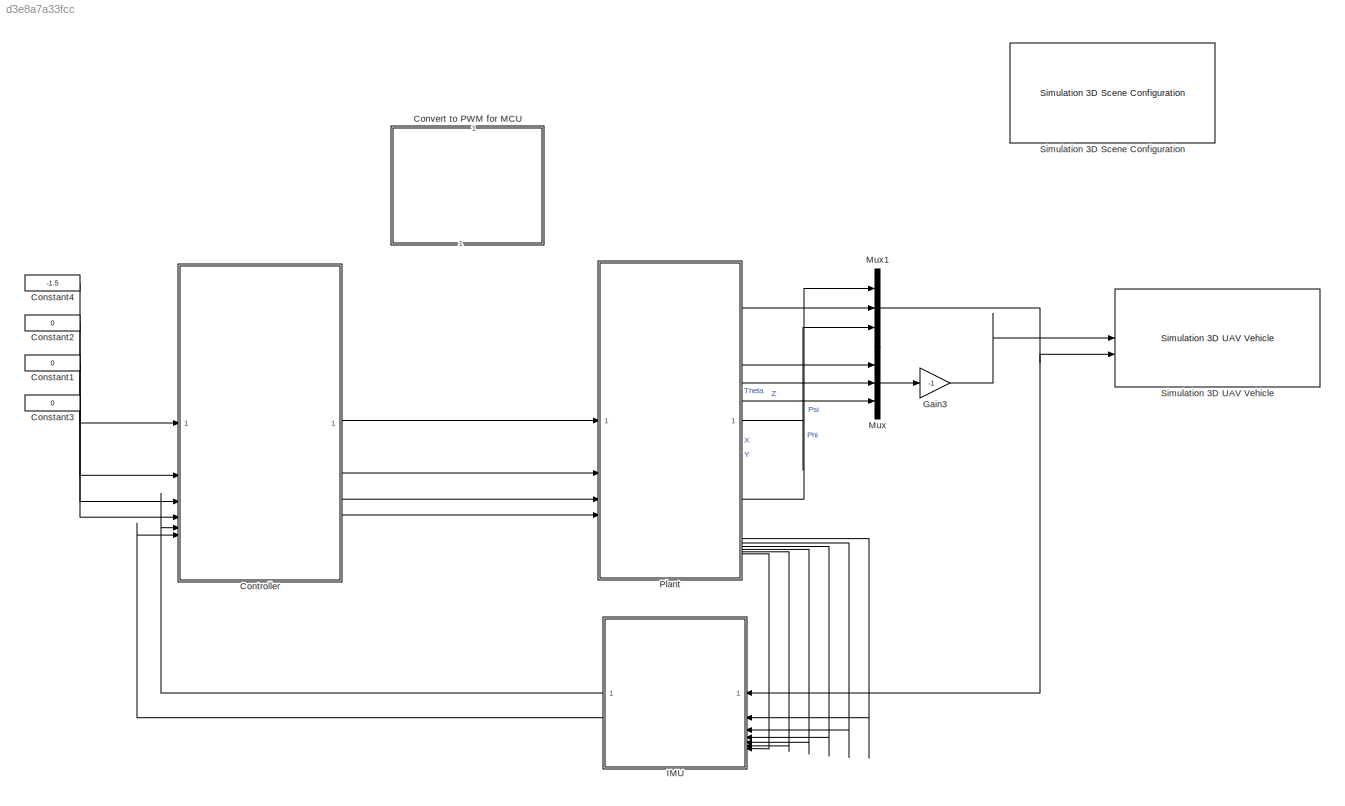
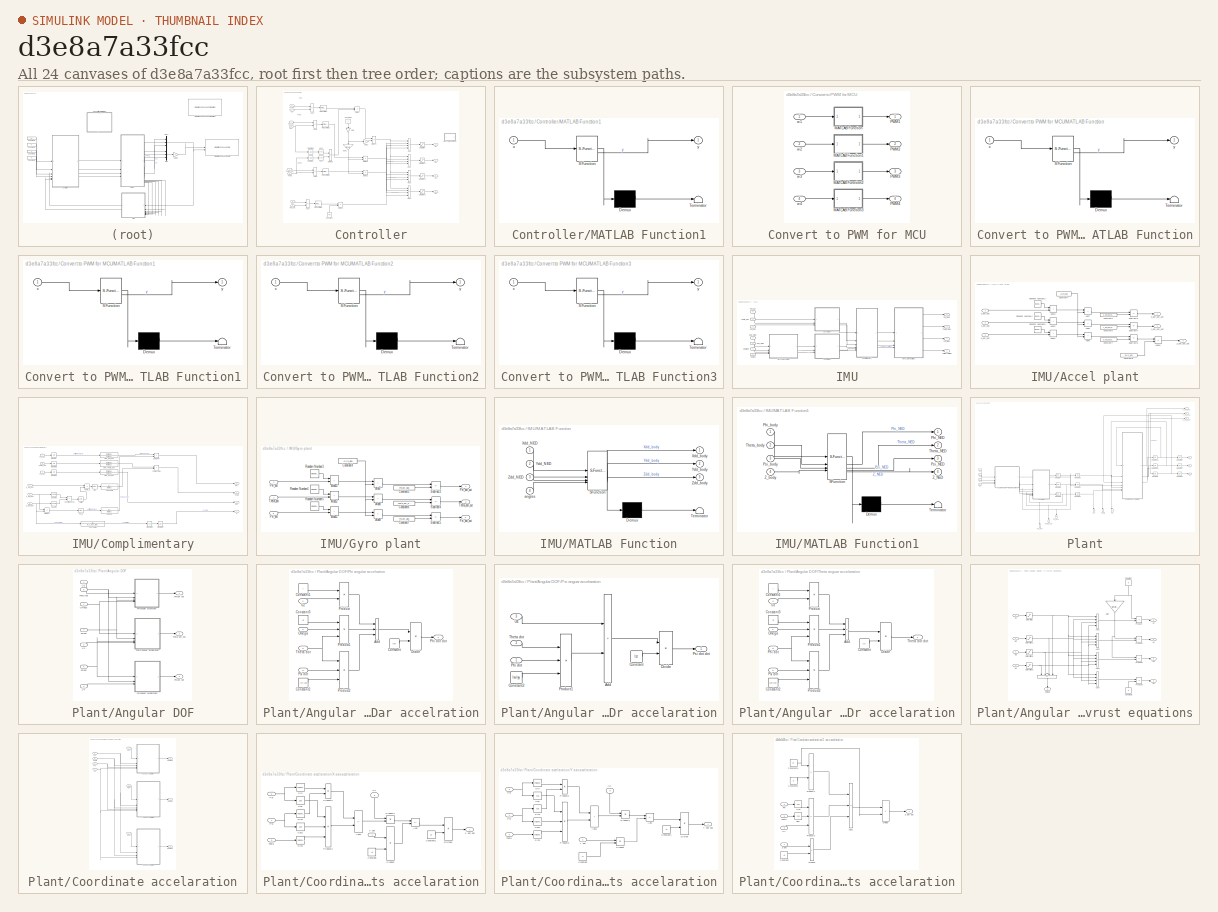
[diagram: thumbnail index - all 24 canvases of the model, root first then tree order]
MODEL slx_d3e8a7a33fcc
KIND model
CONFIG AbsTol = auto
CONFIG EnableMultiTasking = off
CONFIG FixedStep = auto
CONFIG InitFcn = m = 0.0489; % Mass of the drone (kg)\nd = 0.00116; % Torque constant of one motor (N*m / s^2)\nb = 4*1e-5; % Thrust constant of one motor (N / s^2)\nIxx = 48932*1e-9; % Drone inertia around the xx axis (Kg * m^2)\nIyy = 49929*1e-9; % Drone inertia around the yy axis (Kg * m^2)\nIzz = 99299*1e-9; % Drone inertia around the zz axis (Kg * m^2)\nl = 0.116 / 2; % Lenght from the motor to the mid point (m)\nJr...<+405ch>
CONFIG MaxStep = auto
CONFIG MinStep = auto
CONFIG RelTol = 1e-1
CONFIG SampleTimeConstraint = Unconstrained
CONFIG SolverName = VariableStepAuto
CONFIG StartTime = 0.0
CONFIG StopTime = 10
BLOCK [Constant] Constant1
  Value = 0
BLOCK [Constant] Constant2
  Value = 0
BLOCK [Constant] Constant3
  Value = 0
BLOCK [Constant] Constant4
  Value = -1.5
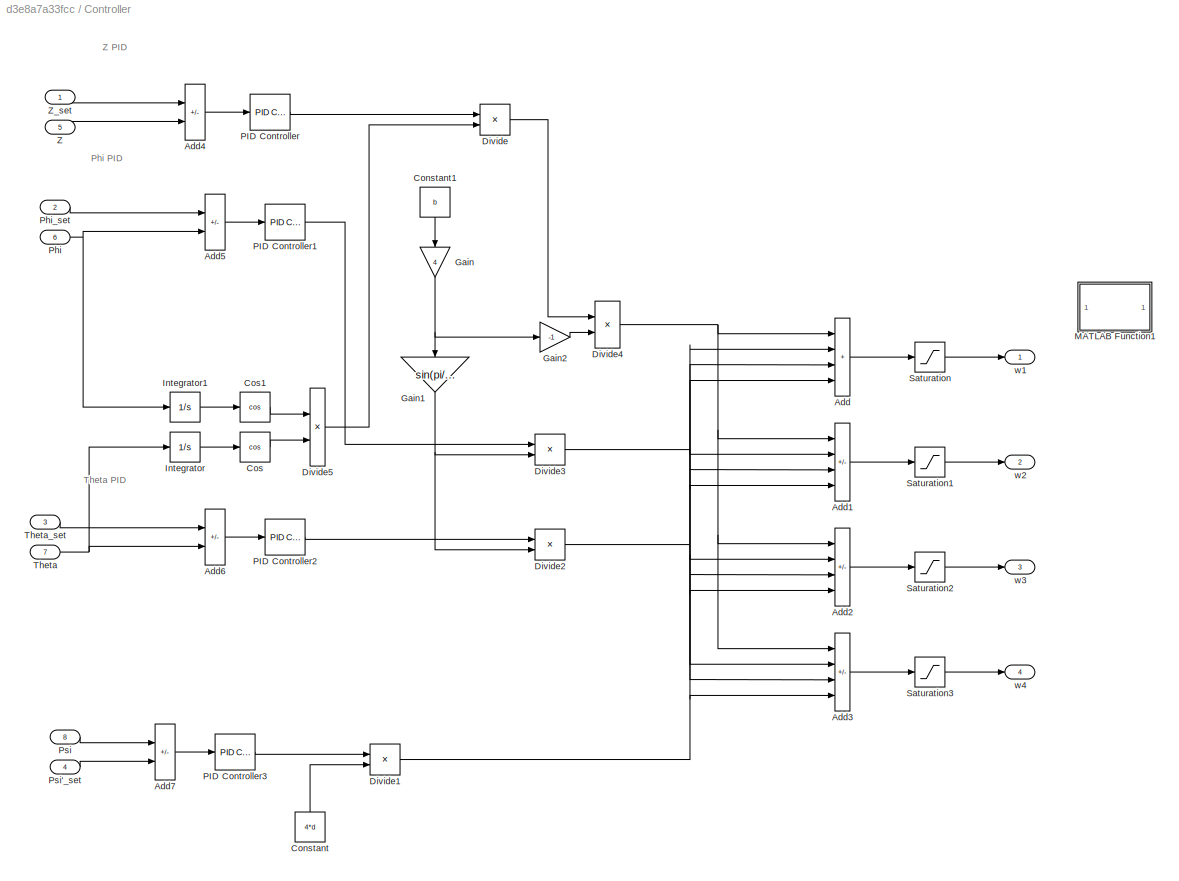
BLOCK [SubSystem] Controller
BLOCK [Sum] Controller/Add
  IconShape = rectangular
  Inputs = ++++
BLOCK [Sum] Controller/Add1
  IconShape = rectangular
  Inputs = +-+-
BLOCK [Sum] Controller/Add2
  IconShape = rectangular
  Inputs = +--+
BLOCK [Sum] Controller/Add3
  IconShape = rectangular
  Inputs = ++--
BLOCK [Sum] Controller/Add4
  IconShape = rectangular
  Inputs = +-
BLOCK [Sum] Controller/Add5
  IconShape = rectangular
  Inputs = +-
BLOCK [Sum] Controller/Add6
  IconShape = rectangular
  Inputs = +-
BLOCK [Sum] Controller/Add7
  IconShape = rectangular
  Inputs = +-
BLOCK [Constant] Controller/Constant
  NameLocation = right
  Value = 4*d
BLOCK [Constant] Controller/Constant1
  NameLocation = left
  Value = b
BLOCK [Trigonometry] Controller/Cos
  Operator = cos
BLOCK [Trigonometry] Controller/Cos1
  Operator = cos
BLOCK [Product] Controller/Divide
  Inputs = */
BLOCK [Product] Controller/Divide1
  Inputs = */
BLOCK [Product] Controller/Divide2
  Inputs = */
BLOCK [Product] Controller/Divide3
  Inputs = */
BLOCK [Product] Controller/Divide4
  Inputs = */
BLOCK [Product] Controller/Divide5
  Inputs = **
BLOCK [Gain] Controller/Gain
  Gain = 4
  NameLocation = left
BLOCK [Gain] Controller/Gain1
  Gain = sin(pi/4)*l
  NameLocation = left
BLOCK [Gain] Controller/Gain2
  Gain = -1
BLOCK [Integrator] Controller/Integrator
BLOCK [Integrator] Controller/Integrator1
BLOCK [SubSystem] Controller/MATLAB Function1
  ErrorFcn = Stateflow.Translate.translate
  LibrarySourceBlock = simulink/User-Defined\nFunctions/MATLAB Function
  PermitHierarchicalResolution = ExplicitOnly
  SFBlockType = MATLAB Function
  TreatAsAtomicUnit = on
BLOCK [Demux] Controller/MATLAB Function1/ Demux 
  Outputs = 1
BLOCK [S-Function] Controller/MATLAB Function1/ SFunction 
  EnableBusSupport = on
  FunctionName = sf_sfun
  PortCounts = [1 2]
  SFcnIsStateOwnerBlock = off
  SFunctionDeploymentMode = off
  Tag = Stateflow S-Function 6
BLOCK [Terminator] Controller/MATLAB Function1/ Terminator 
BLOCK [Inport] Controller/MATLAB Function1/u
BLOCK [Outport] Controller/MATLAB Function1/y
BLOCK [Reference] Controller/PID Controller  REF=slpidlib/PID Controller
  LibrarySourceBlock = simulink/Continuous/PID Controller
  SourceBlock = slpidlib/PID Controller
  SourceType = PID 1dof
BLOCK [Reference] Controller/PID Controller1  REF=slpidlib/PID Controller
  LibrarySourceBlock = simulink/Continuous/PID Controller
  SourceBlock = slpidlib/PID Controller
  SourceType = PID 1dof
BLOCK [Reference] Controller/PID Controller2  REF=slpidlib/PID Controller
  LibrarySourceBlock = simulink/Continuous/PID Controller
  SourceBlock = slpidlib/PID Controller
  SourceType = PID 1dof
BLOCK [Reference] Controller/PID Controller3  REF=slpidlib/PID Controller
  LibrarySourceBlock = simulink/Continuous/PID Controller
  SourceBlock = slpidlib/PID Controller
  SourceType = PID 1dof
BLOCK [Inport] Controller/Phi
  Port = 6
BLOCK [Inport] Controller/Phi_set
  Port = 2
BLOCK [Inport] Controller/Psi
  Port = 8
BLOCK [Inport] Controller/Psi'_set
  Port = 4
BLOCK [Saturate] Controller/Saturation
  LowerLimit = 0
  UpperLimit = 3500
BLOCK [Saturate] Controller/Saturation1
  LowerLimit = 0
  UpperLimit = 3500
BLOCK [Saturate] Controller/Saturation2
  LowerLimit = 0
  UpperLimit = 3500
BLOCK [Saturate] Controller/Saturation3
  LowerLimit = 0
  UpperLimit = 3500
BLOCK [Inport] Controller/Theta
  Port = 7
BLOCK [Inport] Controller/Theta_set
  Port = 3
BLOCK [Inport] Controller/Z
  Port = 5
BLOCK [Inport] Controller/Z_set
BLOCK [Outport] Controller/w1
BLOCK [Outport] Controller/w2
  Port = 2
BLOCK [Outport] Controller/w3
  Port = 3
BLOCK [Outport] Controller/w4
  Port = 4
BLOCK [SubSystem] Convert to PWM for MCU
  Commented = on
  NameLocation = right
BLOCK [SubSystem] Convert to PWM for MCU/MATLAB Function
  ErrorFcn = Stateflow.Translate.translate
  LibrarySourceBlock = simulink/User-Defined\nFunctions/MATLAB Function
  PermitHierarchicalResolution = ExplicitOnly
  SFBlockType = MATLAB Function
  TreatAsAtomicUnit = on
BLOCK [Demux] Convert to PWM for MCU/MATLAB Function/ Demux 
  Outputs = 1
BLOCK [S-Function] Convert to PWM for MCU/MATLAB Function/ SFunction 
  EnableBusSupport = on
  FunctionName = sf_sfun
  PortCounts = [1 2]
  SFcnIsStateOwnerBlock = off
  SFunctionDeploymentMode = off
  Tag = Stateflow S-Function 7
BLOCK [Terminator] Convert to PWM for MCU/MATLAB Function/ Terminator 
BLOCK [Inport] Convert to PWM for MCU/MATLAB Function/x
BLOCK [Outport] Convert to PWM for MCU/MATLAB Function/y
BLOCK [SubSystem] Convert to PWM for MCU/MATLAB Function1
  ErrorFcn = Stateflow.Translate.translate
  LibrarySourceBlock = simulink/User-Defined\nFunctions/MATLAB Function
  PermitHierarchicalResolution = ExplicitOnly
  SFBlockType = MATLAB Function
  TreatAsAtomicUnit = on
BLOCK [Demux] Convert to PWM for MCU/MATLAB Function1/ Demux 
  Outputs = 1
BLOCK [S-Function] Convert to PWM for MCU/MATLAB Function1/ SFunction 
  EnableBusSupport = on
  FunctionName = sf_sfun
  PortCounts = [1 2]
  SFcnIsStateOwnerBlock = off
  SFunctionDeploymentMode = off
  Tag = Stateflow S-Function 1
BLOCK [Terminator] Convert to PWM for MCU/MATLAB Function1/ Terminator 
BLOCK [Inport] Convert to PWM for MCU/MATLAB Function1/x
BLOCK [Outport] Convert to PWM for MCU/MATLAB Function1/y
BLOCK [SubSystem] Convert to PWM for MCU/MATLAB Function2
  ErrorFcn = Stateflow.Translate.translate
  LibrarySourceBlock = simulink/User-Defined\nFunctions/MATLAB Function
  PermitHierarchicalResolution = ExplicitOnly
  SFBlockType = MATLAB Function
  TreatAsAtomicUnit = on
BLOCK [Demux] Convert to PWM for MCU/MATLAB Function2/ Demux 
  Outputs = 1
BLOCK [S-Function] Convert to PWM for MCU/MATLAB Function2/ SFunction 
  EnableBusSupport = on
  FunctionName = sf_sfun
  PortCounts = [1 2]
  SFcnIsStateOwnerBlock = off
  SFunctionDeploymentMode = off
  Tag = Stateflow S-Function 2
BLOCK [Terminator] Convert to PWM for MCU/MATLAB Function2/ Terminator 
BLOCK [Inport] Convert to PWM for MCU/MATLAB Function2/x
BLOCK [Outport] Convert to PWM for MCU/MATLAB Function2/y
BLOCK [SubSystem] Convert to PWM for MCU/MATLAB Function3
  ErrorFcn = Stateflow.Translate.translate
  LibrarySourceBlock = simulink/User-Defined\nFunctions/MATLAB Function
  PermitHierarchicalResolution = ExplicitOnly
  SFBlockType = MATLAB Function
  TreatAsAtomicUnit = on
BLOCK [Demux] Convert to PWM for MCU/MATLAB Function3/ Demux 
  Outputs = 1
BLOCK [S-Function] Convert to PWM for MCU/MATLAB Function3/ SFunction 
  EnableBusSupport = on
  FunctionName = sf_sfun
  PortCounts = [1 2]
  SFcnIsStateOwnerBlock = off
  SFunctionDeploymentMode = off
  Tag = Stateflow S-Function 3
BLOCK [Terminator] Convert to PWM for MCU/MATLAB Function3/ Terminator 
BLOCK [Inport] Convert to PWM for MCU/MATLAB Function3/x
BLOCK [Outport] Convert to PWM for MCU/MATLAB Function3/y
BLOCK [Outport] Convert to PWM for MCU/PWM1
BLOCK [Outport] Convert to PWM for MCU/PWM2
  Port = 2
BLOCK [Outport] Convert to PWM for MCU/PWM3
  Port = 3
BLOCK [Outport] Convert to PWM for MCU/PWM4
  Port = 4
BLOCK [Inport] Convert to PWM for MCU/w1
BLOCK [Inport] Convert to PWM for MCU/w2
  Port = 2
BLOCK [Inport] Convert to PWM for MCU/w3
  Port = 3
BLOCK [Inport] Convert to PWM for MCU/w4
  Port = 4
BLOCK [Gain] Gain3
  Gain = -1
BLOCK [SubSystem] IMU
  NameLocation = top
BLOCK [SubSystem] IMU/Accel plant
BLOCK [Sum] IMU/Accel plant/Add10
  IconShape = rectangular
  Inputs = +-
BLOCK [Sum] IMU/Accel plant/Add11
  IconShape = rectangular
BLOCK [Sum] IMU/Accel plant/Add12
  IconShape = rectangular
BLOCK [Sum] IMU/Accel plant/Add13
  IconShape = rectangular
BLOCK [Sum] IMU/Accel plant/Add7
  IconShape = rectangular
BLOCK [Sum] IMU/Accel plant/Add8
  IconShape = rectangular
BLOCK [Sum] IMU/Accel plant/Add9
  IconShape = rectangular
BLOCK [Constant] IMU/Accel plant/Constant4
  Value = Accel_bias
BLOCK [Constant] IMU/Accel plant/Constant5
  Value = X_dot_dot_bias
BLOCK [Constant] IMU/Accel plant/Constant6
  Value = Y_dot_dot_bias
BLOCK [Constant] IMU/Accel plant/Constant7
  Value = Z_dot_dot_bias
BLOCK [Constant] IMU/Accel plant/Constant8
  Value = Gyro_bias
BLOCK [RandomNumber] IMU/Accel plant/Random Number3
  SampleTime = 0.001
  Seed = 1
  Variance = 0.0001
BLOCK [RandomNumber] IMU/Accel plant/Random Number4
  SampleTime = 0.001
  Seed = 1
  Variance = 0.0001
BLOCK [RandomNumber] IMU/Accel plant/Random Number5
  SampleTime = 0.001
  Seed = 1
  Variance = 0.0001
BLOCK [Sum] IMU/Accel plant/Subtract3
  IconShape = rectangular
  Inputs = +-
BLOCK [Sum] IMU/Accel plant/Subtract4
  IconShape = rectangular
  Inputs = +-
BLOCK [Sum] IMU/Accel plant/Subtract5
  IconShape = rectangular
  Inputs = +-
BLOCK [Inport] IMU/Accel plant/X_dot_dot
BLOCK [Outport] IMU/Accel plant/X_dot_dot_out
BLOCK [Inport] IMU/Accel plant/Y_dot_dot
  Port = 2
BLOCK [Outport] IMU/Accel plant/Y_dot_dot_out
  Port = 2
BLOCK [Inport] IMU/Accel plant/Z_dot_dot
  Port = 3
BLOCK [Outport] IMU/Accel plant/Z_dot_dot_out
  Port = 3
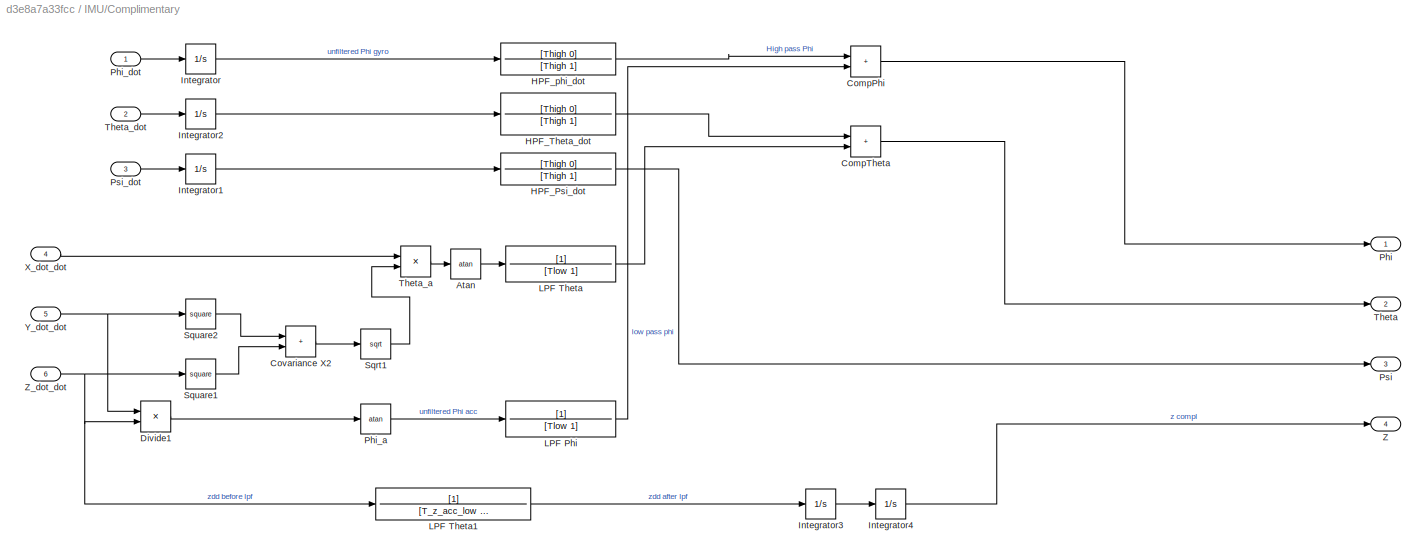
BLOCK [SubSystem] IMU/Complimentary
BLOCK [Trigonometry] IMU/Complimentary/Atan
  Operator = atan
BLOCK [Sum] IMU/Complimentary/CompPhi
  IconShape = rectangular
BLOCK [Sum] IMU/Complimentary/CompTheta
  IconShape = rectangular
BLOCK [Sum] IMU/Complimentary/Covariance X2
  IconShape = rectangular
BLOCK [Product] IMU/Complimentary/Divide1
  Inputs = */
BLOCK [TransferFcn] IMU/Complimentary/HPF_Psi_dot
  Denominator = [Thigh 1]
  Numerator = [Thigh 0]
BLOCK [TransferFcn] IMU/Complimentary/HPF_Theta_dot
  Denominator = [Thigh 1]
  Numerator = [Thigh 0]
BLOCK [TransferFcn] IMU/Complimentary/HPF_phi_dot
  Denominator = [Thigh 1]
  Numerator = [Thigh 0]
BLOCK [Integrator] IMU/Complimentary/Integrator
BLOCK [Integrator] IMU/Complimentary/Integrator1
BLOCK [Integrator] IMU/Complimentary/Integrator2
BLOCK [Integrator] IMU/Complimentary/Integrator3
BLOCK [Integrator] IMU/Complimentary/Integrator4
  LimitOutput = on
  UpperSaturationLimit = 0
BLOCK [TransferFcn] IMU/Complimentary/LPF Phi
  Denominator = [Tlow 1]
BLOCK [TransferFcn] IMU/Complimentary/LPF Theta
  Denominator = [Tlow 1]
BLOCK [TransferFcn] IMU/Complimentary/LPF Theta1
  Denominator = [T_z_acc_low 1]
BLOCK [Outport] IMU/Complimentary/Phi
BLOCK [Trigonometry] IMU/Complimentary/Phi_a
  Operator = atan
BLOCK [Inport] IMU/Complimentary/Phi_dot
BLOCK [Outport] IMU/Complimentary/Psi
  Port = 3
BLOCK [Inport] IMU/Complimentary/Psi_dot
  Port = 3
BLOCK [Sqrt] IMU/Complimentary/Sqrt1
BLOCK [Math] IMU/Complimentary/Square1
  Operator = square
BLOCK [Math] IMU/Complimentary/Square2
  Operator = square
BLOCK [Outport] IMU/Complimentary/Theta
  Port = 2
BLOCK [Product] IMU/Complimentary/Theta_a
  Inputs = */
BLOCK [Inport] IMU/Complimentary/Theta_dot
  Port = 2
BLOCK [Inport] IMU/Complimentary/X_dot_dot
  Port = 4
BLOCK [Inport] IMU/Complimentary/Y_dot_dot
  Port = 5
BLOCK [Outport] IMU/Complimentary/Z
  Port = 4
BLOCK [Inport] IMU/Complimentary/Z_dot_dot
  Port = 6
BLOCK [SubSystem] IMU/Gyro plant
BLOCK [Sum] IMU/Gyro plant/Add11
  IconShape = rectangular
BLOCK [Sum] IMU/Gyro plant/Add12
  IconShape = rectangular
BLOCK [Sum] IMU/Gyro plant/Add13
  IconShape = rectangular
BLOCK [Sum] IMU/Gyro plant/Add7
  IconShape = rectangular
BLOCK [Sum] IMU/Gyro plant/Add8
  IconShape = rectangular
BLOCK [Sum] IMU/Gyro plant/Add9
  IconShape = rectangular
BLOCK [Constant] IMU/Gyro plant/Constant4
  Value = Gyro_bias
BLOCK [Constant] IMU/Gyro plant/Constant5
  Value = Phi_dot_bias
BLOCK [Constant] IMU/Gyro plant/Constant6
  Value = Theta_dot_bias
BLOCK [Constant] IMU/Gyro plant/Constant7
  Value = Psi_dot_bias
BLOCK [Inport] IMU/Gyro plant/Phi_dot
BLOCK [Outport] IMU/Gyro plant/Phi_dot_out
BLOCK [Inport] IMU/Gyro plant/Psi_dot
  Port = 3
BLOCK [Outport] IMU/Gyro plant/Psi_dot_out
  Port = 3
BLOCK [RandomNumber] IMU/Gyro plant/Random Number3
  SampleTime = 0.001
  Seed = 1
  Variance = 0.0001
BLOCK [RandomNumber] IMU/Gyro plant/Random Number4
  SampleTime = 0.001
  Seed = 1
  Variance = 0.0001
BLOCK [RandomNumber] IMU/Gyro plant/Random Number5
  SampleTime = 0.001
  Seed = 1
  Variance = 0.0001
BLOCK [Sum] IMU/Gyro plant/Subtract3
  IconShape = rectangular
  Inputs = +-
BLOCK [Sum] IMU/Gyro plant/Subtract4
  IconShape = rectangular
  Inputs = +-
BLOCK [Sum] IMU/Gyro plant/Subtract5
  IconShape = rectangular
  Inputs = +-
BLOCK [Inport] IMU/Gyro plant/Theta_dot
  Port = 2
BLOCK [Outport] IMU/Gyro plant/Theta_dot_out
  Port = 2
BLOCK [SubSystem] IMU/MATLAB Function
  ErrorFcn = Stateflow.Translate.translate
  LibrarySourceBlock = simulink/User-Defined\nFunctions/MATLAB Function
  PermitHierarchicalResolution = ExplicitOnly
  SFBlockType = MATLAB Function
  TreatAsAtomicUnit = on
BLOCK [Demux] IMU/MATLAB Function/ Demux 
  Outputs = 1
BLOCK [S-Function] IMU/MATLAB Function/ SFunction 
  EnableBusSupport = on
  FunctionName = sf_sfun
  PortCounts = [4 4]
  SFcnIsStateOwnerBlock = off
  SFunctionDeploymentMode = off
  Tag = Stateflow S-Function 5
BLOCK [Terminator] IMU/MATLAB Function/ Terminator 
BLOCK [Inport] IMU/MATLAB Function/Xdd_NED
BLOCK [Outport] IMU/MATLAB Function/Xdd_body
BLOCK [Inport] IMU/MATLAB Function/Ydd_NED
  Port = 2
BLOCK [Outport] IMU/MATLAB Function/Ydd_body
  Port = 2
BLOCK [Inport] IMU/MATLAB Function/Zdd_NED
  Port = 3
BLOCK [Outport] IMU/MATLAB Function/Zdd_body
  Port = 3
BLOCK [Inport] IMU/MATLAB Function/angles
  Port = 4
BLOCK [SubSystem] IMU/MATLAB Function1
  ErrorFcn = Stateflow.Translate.translate
  LibrarySourceBlock = simulink/User-Defined\nFunctions/MATLAB Function
  PermitHierarchicalResolution = ExplicitOnly
  SFBlockType = MATLAB Function
  TreatAsAtomicUnit = on
BLOCK [Demux] IMU/MATLAB Function1/ Demux 
  Outputs = 1
BLOCK [S-Function] IMU/MATLAB Function1/ SFunction 
  EnableBusSupport = on
  FunctionName = sf_sfun
  PortCounts = [4 5]
  SFcnIsStateOwnerBlock = off
  SFunctionDeploymentMode = off
  Tag = Stateflow S-Function 4
BLOCK [Terminator] IMU/MATLAB Function1/ Terminator 
BLOCK [Outport] IMU/MATLAB Function1/Phi_NED
BLOCK [Inport] IMU/MATLAB Function1/Phi_body
BLOCK [Outport] IMU/MATLAB Function1/Psi_NED
  Port = 3
BLOCK [Inport] IMU/MATLAB Function1/Psi_body
  Port = 3
BLOCK [Outport] IMU/MATLAB Function1/Theta_NED
  Port = 2
BLOCK [Inport] IMU/MATLAB Function1/Theta_body
  Port = 2
BLOCK [Outport] IMU/MATLAB Function1/Z_NED
  Port = 4
BLOCK [Inport] IMU/MATLAB Function1/Z_body
  Port = 4
BLOCK [Outport] IMU/Phi_NED
  Port = 2
BLOCK [Inport] IMU/Phi_dot
  Port = 5
BLOCK [Outport] IMU/Psi_NED
  Port = 4
BLOCK [Inport] IMU/Psi_dot
  Port = 7
BLOCK [Outport] IMU/Theta_NED
  Port = 3
BLOCK [Inport] IMU/Theta_dot
  Port = 6
BLOCK [Inport] IMU/Xdd_NED
  Port = 2
BLOCK [Inport] IMU/Ydd_NED
  Port = 3
BLOCK [Outport] IMU/Z after rotation
BLOCK [Inport] IMU/Zdotdot
  Port = 4
BLOCK [Inport] IMU/angles
BLOCK [Mux] Mux
  DisplayOption = bar
  Inputs = 3
BLOCK [Mux] Mux1
  DisplayOption = bar
  Inputs = 3
BLOCK [SubSystem] Plant
BLOCK [SubSystem] Plant/Angular DOF
BLOCK [Inport] Plant/Angular DOF/Omega
  Port = 4
BLOCK [SubSystem] Plant/Angular DOF/Phi angular accelration
BLOCK [Sum] Plant/Angular DOF/Phi angular accelration/Add
  IconShape = rectangular
  Inputs = +++
BLOCK [Constant] Plant/Angular DOF/Phi angular accelration/Constant
  Value = Ixx
BLOCK [Constant] Plant/Angular DOF/Phi angular accelration/Constant1
  Value = l
BLOCK [Constant] Plant/Angular DOF/Phi angular accelration/Constant2
  Value = Iyy-Izz
BLOCK [Constant] Plant/Angular DOF/Phi angular accelration/Constant3
  Value = Jr
BLOCK [Product] Plant/Angular DOF/Phi angular accelration/Divide
  Inputs = */
BLOCK [Inport] Plant/Angular DOF/Phi angular accelration/Omega
  Port = 4
BLOCK [Outport] Plant/Angular DOF/Phi angular accelration/Phi dot dot
BLOCK [Product] Plant/Angular DOF/Phi angular accelration/Product
BLOCK [Product] Plant/Angular DOF/Phi angular accelration/Product1
  Inputs = 3
BLOCK [Product] Plant/Angular DOF/Phi angular accelration/Product2
  Inputs = 3
BLOCK [Inport] Plant/Angular DOF/Phi angular accelration/Psi dot
  Port = 3
BLOCK [Inport] Plant/Angular DOF/Phi angular accelration/Theta dot
  Port = 2
BLOCK [Inport] Plant/Angular DOF/Phi angular accelration/U2
BLOCK [Inport] Plant/Angular DOF/Phi dot
  Port = 5
BLOCK [Outport] Plant/Angular DOF/Phi dot dot
BLOCK [SubSystem] Plant/Angular DOF/Psi anguar accelaration
BLOCK [Sum] Plant/Angular DOF/Psi anguar accelaration/Add
  IconShape = rectangular
BLOCK [Constant] Plant/Angular DOF/Psi anguar accelaration/Constant
  Value = Izz
BLOCK [Constant] Plant/Angular DOF/Psi anguar accelaration/Constant2
  Value = Ixx-Iyy
BLOCK [Product] Plant/Angular DOF/Psi anguar accelaration/Divide
  Inputs = */
BLOCK [Inport] Plant/Angular DOF/Psi anguar accelaration/Phi dot
BLOCK [Product] Plant/Angular DOF/Psi anguar accelaration/Product1
  Inputs = 3
BLOCK [Outport] Plant/Angular DOF/Psi anguar accelaration/Psi dot dot
BLOCK [Inport] Plant/Angular DOF/Psi anguar accelaration/Theta dot
  Port = 2
BLOCK [Inport] Plant/Angular DOF/Psi anguar accelaration/U4
  Port = 3
BLOCK [Inport] Plant/Angular DOF/Psi dot
  Port = 7
BLOCK [Outport] Plant/Angular DOF/Psi dot dot
  Port = 3
BLOCK [SubSystem] Plant/Angular DOF/Theta anguar accelaration
BLOCK [Sum] Plant/Angular DOF/Theta anguar accelaration/Add
  IconShape = rectangular
  Inputs = +-+
BLOCK [Constant] Plant/Angular DOF/Theta anguar accelaration/Constant
  Value = Iyy
BLOCK [Constant] Plant/Angular DOF/Theta anguar accelaration/Constant1
  Value = l
BLOCK [Constant] Plant/Angular DOF/Theta anguar accelaration/Constant2
  Value = Izz-Ixx
BLOCK [Constant] Plant/Angular DOF/Theta anguar accelaration/Constant3
  Value = Jr
BLOCK [Product] Plant/Angular DOF/Theta anguar accelaration/Divide
  Inputs = */
BLOCK [Inport] Plant/Angular DOF/Theta anguar accelaration/Omega
BLOCK [Inport] Plant/Angular DOF/Theta anguar accelaration/Phi dot
  Port = 3
BLOCK [Product] Plant/Angular DOF/Theta anguar accelaration/Product
BLOCK [Product] Plant/Angular DOF/Theta anguar accelaration/Product1
  Inputs = 3
BLOCK [Product] Plant/Angular DOF/Theta anguar accelaration/Product2
  Inputs = 3
BLOCK [Inport] Plant/Angular DOF/Theta anguar accelaration/Psi dot
  Port = 2
BLOCK [Outport] Plant/Angular DOF/Theta anguar accelaration/Theta dot dot
BLOCK [Inport] Plant/Angular DOF/Theta anguar accelaration/U3
  Port = 4
BLOCK [Inport] Plant/Angular DOF/Theta dot
  Port = 6
BLOCK [Outport] Plant/Angular DOF/Theta dot dot
  Port = 2
BLOCK [Inport] Plant/Angular DOF/U2
BLOCK [Inport] Plant/Angular DOF/U3
  Port = 2
BLOCK [Inport] Plant/Angular DOF/U4
  Port = 3
BLOCK [SubSystem] Plant/Angular velocity => thrust equations
BLOCK [Sum] Plant/Angular velocity => thrust equations/Add
  IconShape = rectangular
  Inputs = -+-+
  NameLocation = left
BLOCK [Sum] Plant/Angular velocity => thrust equations/Add1
  IconShape = rectangular
  Inputs = ++++
BLOCK [Sum] Plant/Angular velocity => thrust equations/Add2
  IconShape = rectangular
  Inputs = +--+
BLOCK [Sum] Plant/Angular velocity => thrust equations/Add3
  IconShape = rectangular
  Inputs = ++--
BLOCK [Sum] Plant/Angular velocity => thrust equations/Add4
  IconShape = rectangular
  Inputs = +-+-
BLOCK [Constant] Plant/Angular velocity => thrust equations/Constant
  NameLocation = left
  Value = b
BLOCK [Constant] Plant/Angular velocity => thrust equations/Constant2
  NameLocation = right
  Value = d
BLOCK [Gain] Plant/Angular velocity => thrust equations/Gain
  Gain = sin(pi/4)
  NameLocation = left
BLOCK [Outport] Plant/Angular velocity => thrust equations/Omega
  NameLocation = left
  Port = 5
BLOCK [Product] Plant/Angular velocity => thrust equations/Product
BLOCK [Product] Plant/Angular velocity => thrust equations/Product1
BLOCK [Product] Plant/Angular velocity => thrust equations/Product2
BLOCK [Product] Plant/Angular velocity => thrust equations/Product3
BLOCK [Saturate] Plant/Angular velocity => thrust equations/Saturation
  LowerLimit = 0
  UpperLimit = inf
BLOCK [Saturate] Plant/Angular velocity => thrust equations/Saturation1
  LowerLimit = 0
  UpperLimit = inf
BLOCK [Saturate] Plant/Angular velocity => thrust equations/Saturation2
  LowerLimit = 0
  UpperLimit = inf
BLOCK [Saturate] Plant/Angular velocity => thrust equations/Saturation3
  LowerLimit = 0
  UpperLimit = inf
BLOCK [Outport] Plant/Angular velocity => thrust equations/U1
BLOCK [Outport] Plant/Angular velocity => thrust equations/U2
  Port = 2
BLOCK [Outport] Plant/Angular velocity => thrust equations/U3
  Port = 3
BLOCK [Outport] Plant/Angular velocity => thrust equations/U4
  Port = 4
BLOCK [Inport] Plant/Angular velocity => thrust equations/w1
BLOCK [Inport] Plant/Angular velocity => thrust equations/w2
  Port = 2
BLOCK [Inport] Plant/Angular velocity => thrust equations/w3
  Port = 3
BLOCK [Inport] Plant/Angular velocity => thrust equations/w4
  Port = 4
BLOCK [SubSystem] Plant/Coordinate accelaration
BLOCK [Inport] Plant/Coordinate accelaration/Phi
  Port = 5
BLOCK [Inport] Plant/Coordinate accelaration/Psi
  Port = 7
BLOCK [Inport] Plant/Coordinate accelaration/Theta
  Port = 6
BLOCK [Inport] Plant/Coordinate accelaration/U1
  Port = 4
BLOCK [SubSystem] Plant/Coordinate accelaration/X axis accelaration
BLOCK [Sum] Plant/Coordinate accelaration/X axis accelaration/Add
  IconShape = rectangular
  Inputs = +-
BLOCK [Sum] Plant/Coordinate accelaration/X axis accelaration/Add1
  IconShape = rectangular
  Inputs = +-
BLOCK [Constant] Plant/Coordinate accelaration/X axis accelaration/Constant
  Value = Ax
BLOCK [Constant] Plant/Coordinate accelaration/X axis accelaration/Constant1
  Value = m
BLOCK [Trigonometry] Plant/Coordinate accelaration/X axis accelaration/Cos
  Operator = cos
BLOCK [Trigonometry] Plant/Coordinate accelaration/X axis accelaration/Cos1
  Operator = cos
BLOCK [Product] Plant/Coordinate accelaration/X axis accelaration/Divide1
  Inputs = */
BLOCK [Inport] Plant/Coordinate accelaration/X axis accelaration/Phi
  Port = 2
BLOCK [Product] Plant/Coordinate accelaration/X axis accelaration/Product
BLOCK [Product] Plant/Coordinate accelaration/X axis accelaration/Product1
BLOCK [Product] Plant/Coordinate accelaration/X axis accelaration/Product2
BLOCK [Product] Plant/Coordinate accelaration/X axis accelaration/Product3
  Inputs = 3
BLOCK [Inport] Plant/Coordinate accelaration/X axis accelaration/Psi
  Port = 4
BLOCK [Trigonometry] Plant/Coordinate accelaration/X axis accelaration/Sin
BLOCK [Trigonometry] Plant/Coordinate accelaration/X axis accelaration/Sin1
BLOCK [Trigonometry] Plant/Coordinate accelaration/X axis accelaration/Sin2
BLOCK [Inport] Plant/Coordinate accelaration/X axis accelaration/Theta
  Port = 3
BLOCK [Inport] Plant/Coordinate accelaration/X axis accelaration/U1
  NameLocation = left
  Port = 5
BLOCK [Inport] Plant/Coordinate accelaration/X axis accelaration/X dot
BLOCK [Outport] Plant/Coordinate accelaration/X axis accelaration/X dot dot
BLOCK [Inport] Plant/Coordinate accelaration/X dot
BLOCK [Outport] Plant/Coordinate accelaration/X dot dot
BLOCK [SubSystem] Plant/Coordinate accelaration/Y axis accelaration
BLOCK [Sum] Plant/Coordinate accelaration/Y axis accelaration/Add
  IconShape = rectangular
  Inputs = +-
BLOCK [Sum] Plant/Coordinate accelaration/Y axis accelaration/Add1
  IconShape = rectangular
BLOCK [Constant] Plant/Coordinate accelaration/Y axis accelaration/Constant
  Value = Ay
BLOCK [Constant] Plant/Coordinate accelaration/Y axis accelaration/Constant1
  Value = m
BLOCK [Trigonometry] Plant/Coordinate accelaration/Y axis accelaration/Cos
  Operator = cos
BLOCK [Trigonometry] Plant/Coordinate accelaration/Y axis accelaration/Cos1
BLOCK [Product] Plant/Coordinate accelaration/Y axis accelaration/Divide
  Inputs = */
BLOCK [Inport] Plant/Coordinate accelaration/Y axis accelaration/Phi
  Port = 2
BLOCK [Product] Plant/Coordinate accelaration/Y axis accelaration/Product
BLOCK [Product] Plant/Coordinate accelaration/Y axis accelaration/Product1
BLOCK [Product] Plant/Coordinate accelaration/Y axis accelaration/Product2
BLOCK [Product] Plant/Coordinate accelaration/Y axis accelaration/Product3
  Inputs = 3
BLOCK [Inport] Plant/Coordinate accelaration/Y axis accelaration/Psi
  Port = 4
BLOCK [Trigonometry] Plant/Coordinate accelaration/Y axis accelaration/Sin
BLOCK [Trigonometry] Plant/Coordinate accelaration/Y axis accelaration/Sin1
  Operator = cos
BLOCK [Trigonometry] Plant/Coordinate accelaration/Y axis accelaration/Sin2
BLOCK [Inport] Plant/Coordinate accelaration/Y axis accelaration/Theta
  Port = 3
BLOCK [Inport] Plant/Coordinate accelaration/Y axis accelaration/U1
  NameLocation = left
  Port = 5
BLOCK [Inport] Plant/Coordinate accelaration/Y axis accelaration/Y dot
BLOCK [Outport] Plant/Coordinate accelaration/Y axis accelaration/Y dot dot
BLOCK [Inport] Plant/Coordinate accelaration/Y dot
  Port = 2
BLOCK [Outport] Plant/Coordinate accelaration/Y dot dot
  Port = 2
BLOCK [SubSystem] Plant/Coordinate accelaration/Z axis accelaration
BLOCK [Sum] Plant/Coordinate accelaration/Z axis accelaration/Add1
  IconShape = rectangular
  Inputs = +--
BLOCK [Constant] Plant/Coordinate accelaration/Z axis accelaration/Constant
  Value = Az
BLOCK [Constant] Plant/Coordinate accelaration/Z axis accelaration/Constant2
  Value = g
BLOCK [Constant] Plant/Coordinate accelaration/Z axis accelaration/Constant3
  Value = m
BLOCK [Trigonometry] Plant/Coordinate accelaration/Z axis accelaration/Cos
  Operator = cos
BLOCK [Product] Plant/Coordinate accelaration/Z axis accelaration/Divide
  Inputs = */
BLOCK [Inport] Plant/Coordinate accelaration/Z axis accelaration/Phi
  Port = 2
BLOCK [Product] Plant/Coordinate accelaration/Z axis accelaration/Product
BLOCK [Product] Plant/Coordinate accelaration/Z axis accelaration/Product1
BLOCK [Product] Plant/Coordinate accelaration/Z axis accelaration/Product3
  Inputs = 3
BLOCK [Trigonometry] Plant/Coordinate accelaration/Z axis accelaration/Sin2
  Operator = cos
BLOCK [Inport] Plant/Coordinate accelaration/Z axis accelaration/Theta
  Port = 3
BLOCK [Inport] Plant/Coordinate accelaration/Z axis accelaration/U1
  Port = 4
BLOCK [Inport] Plant/Coordinate accelaration/Z axis accelaration/Z dot
BLOCK [Outport] Plant/Coordinate accelaration/Z axis accelaration/Z dot dot
BLOCK [Inport] Plant/Coordinate accelaration/Z dot
  Port = 3
BLOCK [Outport] Plant/Coordinate accelaration/Z dot dot
  Port = 3
BLOCK [Integrator] Plant/Integrator
BLOCK [Integrator] Plant/Integrator1
BLOCK [Integrator] Plant/Integrator10
BLOCK [Integrator] Plant/Integrator11
BLOCK [Integrator] Plant/Integrator2
BLOCK [Integrator] Plant/Integrator3
BLOCK [Integrator] Plant/Integrator4
BLOCK [Integrator] Plant/Integrator5
BLOCK [Integrator] Plant/Integrator6
  LimitOutput = on
  UpperSaturationLimit = 0
BLOCK [Integrator] Plant/Integrator7
BLOCK [Integrator] Plant/Integrator8
BLOCK [Integrator] Plant/Integrator9
BLOCK [Outport] Plant/Phi
  NameLocation = left
BLOCK [Outport] Plant/Phi_dot
  NameLocation = left
  Port = 10
BLOCK [Outport] Plant/Psi
  NameLocation = left
  Port = 3
BLOCK [Outport] Plant/Psi_dot
  NameLocation = left
  Port = 12
BLOCK [Outport] Plant/Theta
  NameLocation = left
  Port = 2
BLOCK [Outport] Plant/Theta_dot
  NameLocation = left
  Port = 11
BLOCK [Outport] Plant/X
  Port = 4
BLOCK [Outport] Plant/X_dot_dot
  Port = 7
BLOCK [Outport] Plant/Y
  Port = 5
BLOCK [Outport] Plant/Y_dot_dot
  Port = 8
BLOCK [Outport] Plant/Z
  Port = 6
BLOCK [Outport] Plant/Z_dot_dot
  Port = 9
BLOCK [Inport] Plant/w1
BLOCK [Inport] Plant/w2
  Port = 2
BLOCK [Inport] Plant/w3
  Port = 3
BLOCK [Inport] Plant/w4
  Port = 4
BLOCK [Reference] Simulation 3D Scene Configuration  REF=sim3dlib/Simulation 3D Scene Configuration
  Commented = on
  LibrarySourceBlock = uavsim3dlib/Simulation 3D Scene Configuration
  Priority = 0
  SourceBlock = sim3dlib/Simulation 3D Scene Configuration
  SourceType = Simulation 3D Scene Configuration
BLOCK [Reference] Simulation 3D UAV Vehicle  REF=uavsim3dlib/Simulation 3D UAV Vehicle
  Commented = on
  Priority = -1
  SourceBlock = uavsim3dlib/Simulation 3D UAV Vehicle
  SourceType = Simulation 3D UAV Vehicle
ANNOTATION Controller: Phi PID
ANNOTATION Controller: Theta PID
ANNOTATION Controller: Z PID
LINE Constant1:1 -> Controller:3
LINE Constant2:1 -> Controller:2
LINE Constant3:1 -> Controller:4
LINE Constant4:1 -> Controller:1
LINE Controller/Add1:1 -> Controller/Saturation1:1
LINE Controller/Add2:1 -> Controller/Saturation2:1
LINE Controller/Add3:1 -> Controller/Saturation3:1
LINE Controller/Add4:1 -> Controller/PID Controller:1
LINE Controller/Add5:1 -> Controller/PID Controller1:1
LINE Controller/Add6:1 -> Controller/PID Controller2:1
LINE Controller/Add7:1 -> Controller/PID Controller3:1
LINE Controller/Add:1 -> Controller/Saturation:1
LINE Controller/Constant1:1 -> Controller/Gain:1
LINE Controller/Constant:1 -> Controller/Divide1:2
LINE Controller/Cos1:1 -> Controller/Divide5:1
LINE Controller/Cos:1 -> Controller/Divide5:2
NET Controller/Divide1:1 -> Controller/Add1:4, Controller/Add2:4, Controller/Add3:4, Controller/Add:4
NET Controller/Divide2:1 -> Controller/Add1:3, Controller/Add2:3, Controller/Add3:3, Controller/Add:3
NET Controller/Divide3:1 -> Controller/Add1:2, Controller/Add2:2, Controller/Add3:2, Controller/Add:2
NET Controller/Divide4:1 -> Controller/Add1:1, Controller/Add2:1, Controller/Add3:1, Controller/Add:1
LINE Controller/Divide5:1 -> Controller/Divide:2
LINE Controller/Divide:1 -> Controller/Divide4:1
NET Controller/Gain1:1 -> Controller/Divide2:2, Controller/Divide3:2
LINE Controller/Gain2:1 -> Controller/Divide4:2
NET Controller/Gain:1 -> Controller/Gain1:1, Controller/Gain2:1
LINE Controller/Integrator1:1 -> Controller/Cos1:1
LINE Controller/Integrator:1 -> Controller/Cos:1
LINE Controller/PID Controller1:1 -> Controller/Divide3:1
LINE Controller/PID Controller2:1 -> Controller/Divide2:1
LINE Controller/PID Controller3:1 -> Controller/Divide1:1
LINE Controller/PID Controller:1 -> Controller/Divide:1
NET Controller/Phi:1 -> Controller/Add5:2, Controller/Integrator1:1
LINE Controller/Phi_set:1 -> Controller/Add5:1
LINE Controller/Psi'_set:1 -> Controller/Add7:2
LINE Controller/Psi:1 -> Controller/Add7:1
LINE Controller/Saturation1:1 -> Controller/w2:1
LINE Controller/Saturation2:1 -> Controller/w3:1
LINE Controller/Saturation3:1 -> Controller/w4:1
LINE Controller/Saturation:1 -> Controller/w1:1
NET Controller/Theta:1 -> Controller/Add6:2, Controller/Integrator:1
LINE Controller/Theta_set:1 -> Controller/Add6:1
LINE Controller/Z:1 -> Controller/Add4:2
LINE Controller/Z_set:1 -> Controller/Add4:1
LINE Controller:1 -> Plant:1
LINE Controller:2 -> Plant:2
LINE Controller:3 -> Plant:3
LINE Controller:4 -> Plant:4
LINE Convert to PWM for MCU/MATLAB Function1:1 -> Convert to PWM for MCU/PWM2:1
LINE Convert to PWM for MCU/MATLAB Function2:1 -> Convert to PWM for MCU/PWM3:1
LINE Convert to PWM for MCU/MATLAB Function3:1 -> Convert to PWM for MCU/PWM4:1
LINE Convert to PWM for MCU/MATLAB Function:1 -> Convert to PWM for MCU/PWM1:1
LINE Convert to PWM for MCU/w1:1 -> Convert to PWM for MCU/MATLAB Function:1
LINE Convert to PWM for MCU/w2:1 -> Convert to PWM for MCU/MATLAB Function1:1
LINE Convert to PWM for MCU/w3:1 -> Convert to PWM for MCU/MATLAB Function2:1
LINE Convert to PWM for MCU/w4:1 -> Convert to PWM for MCU/MATLAB Function3:1
LINE Gain3:1 -> Simulation 3D UAV Vehicle:1
LINE IMU/Accel plant/Add10:1 -> IMU/Accel plant/Z_dot_dot_out:1
LINE IMU/Accel plant/Add11:1 -> IMU/Accel plant/Add9:1
LINE IMU/Accel plant/Add12:1 -> IMU/Accel plant/Add8:1
LINE IMU/Accel plant/Add13:1 -> IMU/Accel plant/Add7:1
LINE IMU/Accel plant/Add7:1 -> IMU/Accel plant/Subtract3:1
LINE IMU/Accel plant/Add8:1 -> IMU/Accel plant/Subtract4:1
LINE IMU/Accel plant/Add9:1 -> IMU/Accel plant/Subtract5:1
NET IMU/Accel plant/Constant4:1 -> IMU/Accel plant/Add7:2, IMU/Accel plant/Add8:2, IMU/Accel plant/Add9:2
LINE IMU/Accel plant/Constant5:1 -> IMU/Accel plant/Subtract3:2
LINE IMU/Accel plant/Constant6:1 -> IMU/Accel plant/Subtract4:2
LINE IMU/Accel plant/Constant7:1 -> IMU/Accel plant/Subtract5:2
LINE IMU/Accel plant/Constant8:1 -> IMU/Accel plant/Add10:2
LINE IMU/Accel plant/Random Number3:1 -> IMU/Accel plant/Add13:1
LINE IMU/Accel plant/Random Number4:1 -> IMU/Accel plant/Add12:1
LINE IMU/Accel plant/Random Number5:1 -> IMU/Accel plant/Add11:1
LINE IMU/Accel plant/Subtract3:1 -> IMU/Accel plant/X_dot_dot_out:1
LINE IMU/Accel plant/Subtract4:1 -> IMU/Accel plant/Y_dot_dot_out:1
LINE IMU/Accel plant/Subtract5:1 -> IMU/Accel plant/Add10:1
LINE IMU/Accel plant/X_dot_dot:1 -> IMU/Accel plant/Add13:2
LINE IMU/Accel plant/Y_dot_dot:1 -> IMU/Accel plant/Add12:2
LINE IMU/Accel plant/Z_dot_dot:1 -> IMU/Accel plant/Add11:2
LINE IMU/Accel plant:1 -> IMU/Complimentary:4
LINE IMU/Accel plant:2 -> IMU/Complimentary:5
LINE IMU/Accel plant:3 -> IMU/Complimentary:6
LINE IMU/Complimentary/Atan:1 -> IMU/Complimentary/LPF Theta:1
LINE IMU/Complimentary/CompPhi:1 -> IMU/Complimentary/Phi:1
LINE IMU/Complimentary/CompTheta:1 -> IMU/Complimentary/Theta:1
LINE IMU/Complimentary/Covariance X2:1 -> IMU/Complimentary/Sqrt1:1
LINE IMU/Complimentary/Divide1:1 -> IMU/Complimentary/Phi_a:1
LINE IMU/Complimentary/HPF_Psi_dot:1 -> IMU/Complimentary/Psi:1
LINE IMU/Complimentary/HPF_Theta_dot:1 -> IMU/Complimentary/CompTheta:1
LINE IMU/Complimentary/HPF_phi_dot:1 -> IMU/Complimentary/CompPhi:1
LINE IMU/Complimentary/Integrator1:1 -> IMU/Complimentary/HPF_Psi_dot:1
LINE IMU/Complimentary/Integrator2:1 -> IMU/Complimentary/HPF_Theta_dot:1
LINE IMU/Complimentary/Integrator3:1 -> IMU/Complimentary/Integrator4:1
LINE IMU/Complimentary/Integrator4:1 -> IMU/Complimentary/Z:1
LINE IMU/Complimentary/Integrator:1 -> IMU/Complimentary/HPF_phi_dot:1
LINE IMU/Complimentary/LPF Phi:1 -> IMU/Complimentary/CompPhi:2
LINE IMU/Complimentary/LPF Theta1:1 -> IMU/Complimentary/Integrator3:1
LINE IMU/Complimentary/LPF Theta:1 -> IMU/Complimentary/CompTheta:2
LINE IMU/Complimentary/Phi_a:1 -> IMU/Complimentary/LPF Phi:1
LINE IMU/Complimentary/Phi_dot:1 -> IMU/Complimentary/Integrator:1
LINE IMU/Complimentary/Psi_dot:1 -> IMU/Complimentary/Integrator1:1
LINE IMU/Complimentary/Sqrt1:1 -> IMU/Complimentary/Theta_a:2
LINE IMU/Complimentary/Square1:1 -> IMU/Complimentary/Covariance X2:2
LINE IMU/Complimentary/Square2:1 -> IMU/Complimentary/Covariance X2:1
LINE IMU/Complimentary/Theta_a:1 -> IMU/Complimentary/Atan:1
LINE IMU/Complimentary/Theta_dot:1 -> IMU/Complimentary/Integrator2:1
LINE IMU/Complimentary/X_dot_dot:1 -> IMU/Complimentary/Theta_a:1
NET IMU/Complimentary/Y_dot_dot:1 -> IMU/Complimentary/Divide1:1, IMU/Complimentary/Square2:1
NET IMU/Complimentary/Z_dot_dot:1 -> IMU/Complimentary/Divide1:2, IMU/Complimentary/LPF Theta1:1, IMU/Complimentary/Square1:1
LINE IMU/Complimentary:1 -> IMU/MATLAB Function1:1
LINE IMU/Complimentary:2 -> IMU/MATLAB Function1:2
LINE IMU/Complimentary:3 -> IMU/MATLAB Function1:3
LINE IMU/Complimentary:4 -> IMU/MATLAB Function1:4
LINE IMU/Gyro plant/Add11:1 -> IMU/Gyro plant/Add9:1
LINE IMU/Gyro plant/Add12:1 -> IMU/Gyro plant/Add8:1
LINE IMU/Gyro plant/Add13:1 -> IMU/Gyro plant/Add7:1
LINE IMU/Gyro plant/Add7:1 -> IMU/Gyro plant/Subtract3:1
LINE IMU/Gyro plant/Add8:1 -> IMU/Gyro plant/Subtract4:1
LINE IMU/Gyro plant/Add9:1 -> IMU/Gyro plant/Subtract5:1
NET IMU/Gyro plant/Constant4:1 -> IMU/Gyro plant/Add7:2, IMU/Gyro plant/Add8:2, IMU/Gyro plant/Add9:2
LINE IMU/Gyro plant/Constant5:1 -> IMU/Gyro plant/Subtract3:2
LINE IMU/Gyro plant/Constant6:1 -> IMU/Gyro plant/Subtract4:2
LINE IMU/Gyro plant/Constant7:1 -> IMU/Gyro plant/Subtract5:2
LINE IMU/Gyro plant/Phi_dot:1 -> IMU/Gyro plant/Add13:2
LINE IMU/Gyro plant/Psi_dot:1 -> IMU/Gyro plant/Add11:2
LINE IMU/Gyro plant/Random Number3:1 -> IMU/Gyro plant/Add13:1
LINE IMU/Gyro plant/Random Number4:1 -> IMU/Gyro plant/Add12:1
LINE IMU/Gyro plant/Random Number5:1 -> IMU/Gyro plant/Add11:1
LINE IMU/Gyro plant/Subtract3:1 -> IMU/Gyro plant/Phi_dot_out:1
LINE IMU/Gyro plant/Subtract4:1 -> IMU/Gyro plant/Theta_dot_out:1
LINE IMU/Gyro plant/Subtract5:1 -> IMU/Gyro plant/Psi_dot_out:1
LINE IMU/Gyro plant/Theta_dot:1 -> IMU/Gyro plant/Add12:2
LINE IMU/Gyro plant:1 -> IMU/Complimentary:1
LINE IMU/Gyro plant:2 -> IMU/Complimentary:2
LINE IMU/Gyro plant:3 -> IMU/Complimentary:3
LINE IMU/MATLAB Function1:1 -> IMU/Phi_NED:1
LINE IMU/MATLAB Function1:2 -> IMU/Theta_NED:1
LINE IMU/MATLAB Function1:3 -> IMU/Psi_NED:1
LINE IMU/MATLAB Function1:4 -> IMU/Z after rotation:1
LINE IMU/MATLAB Function:1 -> IMU/Accel plant:1
LINE IMU/MATLAB Function:2 -> IMU/Accel plant:2
LINE IMU/MATLAB Function:3 -> IMU/Accel plant:3
LINE IMU/Phi_dot:1 -> IMU/Gyro plant:1
LINE IMU/Psi_dot:1 -> IMU/Gyro plant:3
LINE IMU/Theta_dot:1 -> IMU/Gyro plant:2
LINE IMU/Xdd_NED:1 -> IMU/MATLAB Function:1
LINE IMU/Ydd_NED:1 -> IMU/MATLAB Function:2
LINE IMU/Zdotdot:1 -> IMU/MATLAB Function:3
LINE IMU/angles:1 -> IMU/MATLAB Function:4
LINE IMU:1 -> Controller:5
LINE IMU:2 -> Controller:6
NET Mux1:1 -> IMU:1, Simulation 3D UAV Vehicle:2
LINE Mux:1 -> Gain3:1
NET Plant/Angular DOF/Omega:1 -> Plant/Angular DOF/Phi angular accelration:4, Plant/Angular DOF/Theta anguar accelaration:1
LINE Plant/Angular DOF/Phi angular accelration/Add:1 -> Plant/Angular DOF/Phi angular accelration/Divide:1
LINE Plant/Angular DOF/Phi angular accelration/Constant1:1 -> Plant/Angular DOF/Phi angular accelration/Product:1
LINE Plant/Angular DOF/Phi angular accelration/Constant2:1 -> Plant/Angular DOF/Phi angular accelration/Product2:3
LINE Plant/Angular DOF/Phi angular accelration/Constant3:1 -> Plant/Angular DOF/Phi angular accelration/Product1:1
LINE Plant/Angular DOF/Phi angular accelration/Constant:1 -> Plant/Angular DOF/Phi angular accelration/Divide:2
LINE Plant/Angular DOF/Phi angular accelration/Divide:1 -> Plant/Angular DOF/Phi angular accelration/Phi dot dot:1
LINE Plant/Angular DOF/Phi angular accelration/Omega:1 -> Plant/Angular DOF/Phi angular accelration/Product1:2
LINE Plant/Angular DOF/Phi angular accelration/Product1:1 -> Plant/Angular DOF/Phi angular accelration/Add:2
LINE Plant/Angular DOF/Phi angular accelration/Product2:1 -> Plant/Angular DOF/Phi angular accelration/Add:3
LINE Plant/Angular DOF/Phi angular accelration/Product:1 -> Plant/Angular DOF/Phi angular accelration/Add:1
LINE Plant/Angular DOF/Phi angular accelration/Psi dot:1 -> Plant/Angular DOF/Phi angular accelration/Product2:2
NET Plant/Angular DOF/Phi angular accelration/Theta dot:1 -> Plant/Angular DOF/Phi angular accelration/Product1:3, Plant/Angular DOF/Phi angular accelration/Product2:1
LINE Plant/Angular DOF/Phi angular accelration/U2:1 -> Plant/Angular DOF/Phi angular accelration/Product:2
LINE Plant/Angular DOF/Phi angular accelration:1 -> Plant/Angular DOF/Phi dot dot:1
NET Plant/Angular DOF/Phi dot:1 -> Plant/Angular DOF/Psi anguar accelaration:1, Plant/Angular DOF/Theta anguar accelaration:3
LINE Plant/Angular DOF/Psi anguar accelaration/Add:1 -> Plant/Angular DOF/Psi anguar accelaration/Divide:1
LINE Plant/Angular DOF/Psi anguar accelaration/Constant2:1 -> Plant/Angular DOF/Psi anguar accelaration/Product1:3
LINE Plant/Angular DOF/Psi anguar accelaration/Constant:1 -> Plant/Angular DOF/Psi anguar accelaration/Divide:2
LINE Plant/Angular DOF/Psi anguar accelaration/Divide:1 -> Plant/Angular DOF/Psi anguar accelaration/Psi dot dot:1
LINE Plant/Angular DOF/Psi anguar accelaration/Phi dot:1 -> Plant/Angular DOF/Psi anguar accelaration/Product1:2
LINE Plant/Angular DOF/Psi anguar accelaration/Product1:1 -> Plant/Angular DOF/Psi anguar accelaration/Add:2
LINE Plant/Angular DOF/Psi anguar accelaration/Theta dot:1 -> Plant/Angular DOF/Psi anguar accelaration/Product1:1
LINE Plant/Angular DOF/Psi anguar accelaration/U4:1 -> Plant/Angular DOF/Psi anguar accelaration/Add:1
LINE Plant/Angular DOF/Psi anguar accelaration:1 -> Plant/Angular DOF/Psi dot dot:1
NET Plant/Angular DOF/Psi dot:1 -> Plant/Angular DOF/Phi angular accelration:3, Plant/Angular DOF/Theta anguar accelaration:2
LINE Plant/Angular DOF/Theta anguar accelaration/Add:1 -> Plant/Angular DOF/Theta anguar accelaration/Divide:1
LINE Plant/Angular DOF/Theta anguar accelaration/Constant1:1 -> Plant/Angular DOF/Theta anguar accelaration/Product:1
LINE Plant/Angular DOF/Theta anguar accelaration/Constant2:1 -> Plant/Angular DOF/Theta anguar accelaration/Product2:3
LINE Plant/Angular DOF/Theta anguar accelaration/Constant3:1 -> Plant/Angular DOF/Theta anguar accelaration/Product1:1
LINE Plant/Angular DOF/Theta anguar accelaration/Constant:1 -> Plant/Angular DOF/Theta anguar accelaration/Divide:2
LINE Plant/Angular DOF/Theta anguar accelaration/Divide:1 -> Plant/Angular DOF/Theta anguar accelaration/Theta dot dot:1
LINE Plant/Angular DOF/Theta anguar accelaration/Omega:1 -> Plant/Angular DOF/Theta anguar accelaration/Product1:2
NET Plant/Angular DOF/Theta anguar accelaration/Phi dot:1 -> Plant/Angular DOF/Theta anguar accelaration/Product1:3, Plant/Angular DOF/Theta anguar accelaration/Product2:1
LINE Plant/Angular DOF/Theta anguar accelaration/Product1:1 -> Plant/Angular DOF/Theta anguar accelaration/Add:2
LINE Plant/Angular DOF/Theta anguar accelaration/Product2:1 -> Plant/Angular DOF/Theta anguar accelaration/Add:3
LINE Plant/Angular DOF/Theta anguar accelaration/Product:1 -> Plant/Angular DOF/Theta anguar accelaration/Add:1
LINE Plant/Angular DOF/Theta anguar accelaration/Psi dot:1 -> Plant/Angular DOF/Theta anguar accelaration/Product2:2
LINE Plant/Angular DOF/Theta anguar accelaration/U3:1 -> Plant/Angular DOF/Theta anguar accelaration/Product:2
LINE Plant/Angular DOF/Theta anguar accelaration:1 -> Plant/Angular DOF/Theta dot dot:1
NET Plant/Angular DOF/Theta dot:1 -> Plant/Angular DOF/Phi angular accelration:2, Plant/Angular DOF/Psi anguar accelaration:2
LINE Plant/Angular DOF/U2:1 -> Plant/Angular DOF/Phi angular accelration:1
LINE Plant/Angular DOF/U3:1 -> Plant/Angular DOF/Theta anguar accelaration:4
LINE Plant/Angular DOF/U4:1 -> Plant/Angular DOF/Psi anguar accelaration:3
LINE Plant/Angular DOF:1 -> Plant/Integrator:1
LINE Plant/Angular DOF:2 -> Plant/Integrator1:1
LINE Plant/Angular DOF:3 -> Plant/Integrator2:1
LINE Plant/Angular velocity => thrust equations/Add1:1 -> Plant/Angular velocity => thrust equations/Product:2
LINE Plant/Angular velocity => thrust equations/Add2:1 -> Plant/Angular velocity => thrust equations/Product1:2
LINE Plant/Angular velocity => thrust equations/Add3:1 -> Plant/Angular velocity => thrust equations/Product2:2
LINE Plant/Angular velocity => thrust equations/Add4:1 -> Plant/Angular velocity => thrust equations/Product3:1
LINE Plant/Angular velocity => thrust equations/Add:1 -> Plant/Angular velocity => thrust equations/Omega:1
LINE Plant/Angular velocity => thrust equations/Constant2:1 -> Plant/Angular velocity => thrust equations/Product3:2
NET Plant/Angular velocity => thrust equations/Constant:1 -> Plant/Angular velocity => thrust equations/Gain:1, Plant/Angular velocity => thrust equations/Product:1
NET Plant/Angular velocity => thrust equations/Gain:1 -> Plant/Angular velocity => thrust equations/Product1:1, Plant/Angular velocity => thrust equations/Product2:1
LINE Plant/Angular velocity => thrust equations/Product1:1 -> Plant/Angular velocity => thrust equations/U2:1
LINE Plant/Angular velocity => thrust equations/Product2:1 -> Plant/Angular velocity => thrust equations/U3:1
LINE Plant/Angular velocity => thrust equations/Product3:1 -> Plant/Angular velocity => thrust equations/U4:1
LINE Plant/Angular velocity => thrust equations/Product:1 -> Plant/Angular velocity => thrust equations/U1:1
NET Plant/Angular velocity => thrust equations/Saturation1:1 -> Plant/Angular velocity => thrust equations/Add1:2, Plant/Angular velocity => thrust equations/Add2:2, Plant/Angular velocity => thrust equations/Add3:2, Plant/Angular velocity => thrust equations/Add4:2, Plant/Angular velocity => thrust equations/Add:3
NET Plant/Angular velocity => thrust equations/Saturation2:1 -> Plant/Angular velocity => thrust equations/Add1:3, Plant/Angular velocity => thrust equations/Add2:3, Plant/Angular velocity => thrust equations/Add3:3, Plant/Angular velocity => thrust equations/Add4:3, Plant/Angular velocity => thrust equations/Add:2
NET Plant/Angular velocity => thrust equations/Saturation3:1 -> Plant/Angular velocity => thrust equations/Add1:4, Plant/Angular velocity => thrust equations/Add2:4, Plant/Angular velocity => thrust equations/Add3:4, Plant/Angular velocity => thrust equations/Add4:4, Plant/Angular velocity => thrust equations/Add:1
NET Plant/Angular velocity => thrust equations/Saturation:1 -> Plant/Angular velocity => thrust equations/Add1:1, Plant/Angular velocity => thrust equations/Add2:1, Plant/Angular velocity => thrust equations/Add3:1, Plant/Angular velocity => thrust equations/Add4:1, Plant/Angular velocity => thrust equations/Add:4
LINE Plant/Angular velocity => thrust equations/w1:1 -> Plant/Angular velocity => thrust equations/Saturation:1
LINE Plant/Angular velocity => thrust equations/w2:1 -> Plant/Angular velocity => thrust equations/Saturation1:1
LINE Plant/Angular velocity => thrust equations/w3:1 -> Plant/Angular velocity => thrust equations/Saturation2:1
LINE Plant/Angular velocity => thrust equations/w4:1 -> Plant/Angular velocity => thrust equations/Saturation3:1
LINE Plant/Angular velocity => thrust equations:1 -> Plant/Coordinate accelaration:4
LINE Plant/Angular velocity => thrust equations:2 -> Plant/Angular DOF:1
LINE Plant/Angular velocity => thrust equations:3 -> Plant/Angular DOF:2
LINE Plant/Angular velocity => thrust equations:4 -> Plant/Angular DOF:3
LINE Plant/Angular velocity => thrust equations:5 -> Plant/Angular DOF:4
NET Plant/Coordinate accelaration/Phi:1 -> Plant/Coordinate accelaration/X axis accelaration:2, Plant/Coordinate accelaration/Y axis accelaration:2, Plant/Coordinate accelaration/Z axis accelaration:2
NET Plant/Coordinate accelaration/Psi:1 -> Plant/Coordinate accelaration/X axis accelaration:4, Plant/Coordinate accelaration/Y axis accelaration:4
NET Plant/Coordinate accelaration/Theta:1 -> Plant/Coordinate accelaration/X axis accelaration:3, Plant/Coordinate accelaration/Y axis accelaration:3, Plant/Coordinate accelaration/Z axis accelaration:3
NET Plant/Coordinate accelaration/U1:1 -> Plant/Coordinate accelaration/X axis accelaration:5, Plant/Coordinate accelaration/Y axis accelaration:5, Plant/Coordinate accelaration/Z axis accelaration:4
LINE Plant/Coordinate accelaration/X axis accelaration/Add1:1 -> Plant/Coordinate accelaration/X axis accelaration/Product1:2
LINE Plant/Coordinate accelaration/X axis accelaration/Add:1 -> Plant/Coordinate accelaration/X axis accelaration/Divide1:1
LINE Plant/Coordinate accelaration/X axis accelaration/Constant1:1 -> Plant/Coordinate accelaration/X axis accelaration/Divide1:2
LINE Plant/Coordinate accelaration/X axis accelaration/Constant:1 -> Plant/Coordinate accelaration/X axis accelaration/Product:2
LINE Plant/Coordinate accelaration/X axis accelaration/Cos1:1 -> Plant/Coordinate accelaration/X axis accelaration/Product3:2
LINE Plant/Coordinate accelaration/X axis accelaration/Cos:1 -> Plant/Coordinate accelaration/X axis accelaration/Product3:1
LINE Plant/Coordinate accelaration/X axis accelaration/Divide1:1 -> Plant/Coordinate accelaration/X axis accelaration/X dot dot:1
NET Plant/Coordinate accelaration/X axis accelaration/Phi:1 -> Plant/Coordinate accelaration/X axis accelaration/Cos:1, Plant/Coordinate accelaration/X axis accelaration/Sin:1
LINE Plant/Coordinate accelaration/X axis accelaration/Product1:1 -> Plant/Coordinate accelaration/X axis accelaration/Add:1
LINE Plant/Coordinate accelaration/X axis accelaration/Product2:1 -> Plant/Coordinate accelaration/X axis accelaration/Add1:1
LINE Plant/Coordinate accelaration/X axis accelaration/Product3:1 -> Plant/Coordinate accelaration/X axis accelaration/Add1:2
LINE Plant/Coordinate accelaration/X axis accelaration/Product:1 -> Plant/Coordinate accelaration/X axis accelaration/Add:2
NET Plant/Coordinate accelaration/X axis accelaration/Psi:1 -> Plant/Coordinate accelaration/X axis accelaration/Cos1:1, Plant/Coordinate accelaration/X axis accelaration/Sin1:1
LINE Plant/Coordinate accelaration/X axis accelaration/Sin1:1 -> Plant/Coordinate accelaration/X axis accelaration/Product2:2
LINE Plant/Coordinate accelaration/X axis accelaration/Sin2:1 -> Plant/Coordinate accelaration/X axis accelaration/Product3:3
LINE Plant/Coordinate accelaration/X axis accelaration/Sin:1 -> Plant/Coordinate accelaration/X axis accelaration/Product2:1
LINE Plant/Coordinate accelaration/X axis accelaration/Theta:1 -> Plant/Coordinate accelaration/X axis accelaration/Sin2:1
LINE Plant/Coordinate accelaration/X axis accelaration/U1:1 -> Plant/Coordinate accelaration/X axis accelaration/Product1:1
LINE Plant/Coordinate accelaration/X axis accelaration/X dot:1 -> Plant/Coordinate accelaration/X axis accelaration/Product:1
LINE Plant/Coordinate accelaration/X axis accelaration:1 -> Plant/Coordinate accelaration/X dot dot:1
LINE Plant/Coordinate accelaration/X dot:1 -> Plant/Coordinate accelaration/X axis accelaration:1
LINE Plant/Coordinate accelaration/Y axis accelaration/Add1:1 -> Plant/Coordinate accelaration/Y axis accelaration/Product1:2
LINE Plant/Coordinate accelaration/Y axis accelaration/Add:1 -> Plant/Coordinate accelaration/Y axis accelaration/Divide:1
LINE Plant/Coordinate accelaration/Y axis accelaration/Constant1:1 -> Plant/Coordinate accelaration/Y axis accelaration/Divide:2
LINE Plant/Coordinate accelaration/Y axis accelaration/Constant:1 -> Plant/Coordinate accelaration/Y axis accelaration/Product:2
LINE Plant/Coordinate accelaration/Y axis accelaration/Cos1:1 -> Plant/Coordinate accelaration/Y axis accelaration/Product3:2
LINE Plant/Coordinate accelaration/Y axis accelaration/Cos:1 -> Plant/Coordinate accelaration/Y axis accelaration/Product3:1
LINE Plant/Coordinate accelaration/Y axis accelaration/Divide:1 -> Plant/Coordinate accelaration/Y axis accelaration/Y dot dot:1
NET Plant/Coordinate accelaration/Y axis accelaration/Phi:1 -> Plant/Coordinate accelaration/Y axis accelaration/Cos:1, Plant/Coordinate accelaration/Y axis accelaration/Sin:1
LINE Plant/Coordinate accelaration/Y axis accelaration/Product1:1 -> Plant/Coordinate accelaration/Y axis accelaration/Add:1
LINE Plant/Coordinate accelaration/Y axis accelaration/Product2:1 -> Plant/Coordinate accelaration/Y axis accelaration/Add1:1
LINE Plant/Coordinate accelaration/Y axis accelaration/Product3:1 -> Plant/Coordinate accelaration/Y axis accelaration/Add1:2
LINE Plant/Coordinate accelaration/Y axis accelaration/Product:1 -> Plant/Coordinate accelaration/Y axis accelaration/Add:2
NET Plant/Coordinate accelaration/Y axis accelaration/Psi:1 -> Plant/Coordinate accelaration/Y axis accelaration/Cos1:1, Plant/Coordinate accelaration/Y axis accelaration/Sin1:1
LINE Plant/Coordinate accelaration/Y axis accelaration/Sin1:1 -> Plant/Coordinate accelaration/Y axis accelaration/Product2:2
LINE Plant/Coordinate accelaration/Y axis accelaration/Sin2:1 -> Plant/Coordinate accelaration/Y axis accelaration/Product3:3
LINE Plant/Coordinate accelaration/Y axis accelaration/Sin:1 -> Plant/Coordinate accelaration/Y axis accelaration/Product2:1
LINE Plant/Coordinate accelaration/Y axis accelaration/Theta:1 -> Plant/Coordinate accelaration/Y axis accelaration/Sin2:1
LINE Plant/Coordinate accelaration/Y axis accelaration/U1:1 -> Plant/Coordinate accelaration/Y axis accelaration/Product1:1
LINE Plant/Coordinate accelaration/Y axis accelaration/Y dot:1 -> Plant/Coordinate accelaration/Y axis accelaration/Product:1
LINE Plant/Coordinate accelaration/Y axis accelaration:1 -> Plant/Coordinate accelaration/Y dot dot:1
LINE Plant/Coordinate accelaration/Y dot:1 -> Plant/Coordinate accelaration/Y axis accelaration:1
LINE Plant/Coordinate accelaration/Z axis accelaration/Add1:1 -> Plant/Coordinate accelaration/Z axis accelaration/Divide:1
LINE Plant/Coordinate accelaration/Z axis accelaration/Constant2:1 -> Plant/Coordinate accelaration/Z axis accelaration/Product1:2
NET Plant/Coordinate accelaration/Z axis accelaration/Constant3:1 -> Plant/Coordinate accelaration/Z axis accelaration/Divide:2, Plant/Coordinate accelaration/Z axis accelaration/Product1:1
LINE Plant/Coordinate accelaration/Z axis accelaration/Constant:1 -> Plant/Coordinate accelaration/Z axis accelaration/Product:2
LINE Plant/Coordinate accelaration/Z axis accelaration/Cos:1 -> Plant/Coordinate accelaration/Z axis accelaration/Product3:1
LINE Plant/Coordinate accelaration/Z axis accelaration/Divide:1 -> Plant/Coordinate accelaration/Z axis accelaration/Z dot dot:1
LINE Plant/Coordinate accelaration/Z axis accelaration/Phi:1 -> Plant/Coordinate accelaration/Z axis accelaration/Cos:1
LINE Plant/Coordinate accelaration/Z axis accelaration/Product1:1 -> Plant/Coordinate accelaration/Z axis accelaration/Add1:1
LINE Plant/Coordinate accelaration/Z axis accelaration/Product3:1 -> Plant/Coordinate accelaration/Z axis accelaration/Add1:2
LINE Plant/Coordinate accelaration/Z axis accelaration/Product:1 -> Plant/Coordinate accelaration/Z axis accelaration/Add1:3
LINE Plant/Coordinate accelaration/Z axis accelaration/Sin2:1 -> Plant/Coordinate accelaration/Z axis accelaration/Product3:2
LINE Plant/Coordinate accelaration/Z axis accelaration/Theta:1 -> Plant/Coordinate accelaration/Z axis accelaration/Sin2:1
LINE Plant/Coordinate accelaration/Z axis accelaration/U1:1 -> Plant/Coordinate accelaration/Z axis accelaration/Product3:3
LINE Plant/Coordinate accelaration/Z axis accelaration/Z dot:1 -> Plant/Coordinate accelaration/Z axis accelaration/Product:1
LINE Plant/Coordinate accelaration/Z axis accelaration:1 -> Plant/Coordinate accelaration/Z dot dot:1
LINE Plant/Coordinate accelaration/Z dot:1 -> Plant/Coordinate accelaration/Z axis accelaration:1
NET Plant/Coordinate accelaration:1 -> Plant/Integrator11:1, Plant/X_dot_dot:1
NET Plant/Coordinate accelaration:2 -> Plant/Integrator10:1, Plant/Y_dot_dot:1
NET Plant/Coordinate accelaration:3 -> Plant/Integrator9:1, Plant/Z_dot_dot:1
NET Plant/Integrator10:1 -> Plant/Coordinate accelaration:2, Plant/Integrator7:1
NET Plant/Integrator11:1 -> Plant/Coordinate accelaration:1, Plant/Integrator8:1
NET Plant/Integrator1:1 -> Plant/Angular DOF:6, Plant/Integrator4:1, Plant/Theta_dot:1
NET Plant/Integrator2:1 -> Plant/Angular DOF:7, Plant/Integrator5:1, Plant/Psi_dot:1
NET Plant/Integrator3:1 -> Plant/Coordinate accelaration:5, Plant/Phi:1
NET Plant/Integrator4:1 -> Plant/Coordinate accelaration:6, Plant/Theta:1
NET Plant/Integrator5:1 -> Plant/Coordinate accelaration:7, Plant/Psi:1
LINE Plant/Integrator6:1 -> Plant/Z:1
LINE Plant/Integrator7:1 -> Plant/Y:1
LINE Plant/Integrator8:1 -> Plant/X:1
NET Plant/Integrator9:1 -> Plant/Coordinate accelaration:3, Plant/Integrator6:1
NET Plant/Integrator:1 -> Plant/Angular DOF:5, Plant/Integrator3:1, Plant/Phi_dot:1
LINE Plant/w1:1 -> Plant/Angular velocity => thrust equations:1
LINE Plant/w2:1 -> Plant/Angular velocity => thrust equations:2
LINE Plant/w3:1 -> Plant/Angular velocity => thrust equations:3
LINE Plant/w4:1 -> Plant/Angular velocity => thrust equations:4
LINE Plant:1 -> Mux1:3
LINE Plant:10 -> IMU:5
LINE Plant:11 -> IMU:6
LINE Plant:12 -> IMU:7
LINE Plant:2 -> Mux1:2
LINE Plant:3 -> Mux1:1
LINE Plant:4 -> Mux:1
LINE Plant:5 -> Mux:2
LINE Plant:6 -> Mux:3
LINE Plant:7 -> IMU:2
LINE Plant:8 -> IMU:3
LINE Plant:9 -> IMU:4
note: NET lines group one-source signal fan-out (src -> all destinations, sorted); 1:1 wires keep LINE
CHART Convert to PWM for MCU/MATLAB Function1 states=1 transitions=1
  STATE_LABEL 'eML_blk_kernel()'
  STATE_LABEL 'SCRIPT:\nfunction y = fcn(x)\n\ny =  8.679e-15*x^9 -9.4e-12*x^8 + 4.063e-09*x^7 -8.819e-07*x^6 + 9.718e-05*x^5 -0.004292*x^4 -0.07222*x^3 + 10.47*x^2 + 30.47*x -1161;\n'
CHART Convert to PWM for MCU/MATLAB Function2 states=1 transitions=1
  STATE_LABEL 'eML_blk_kernel()'
  STATE_LABEL 'SCRIPT:\nfunction y = fcn(x)\n\ny =  8.679e-15*x^9 -9.4e-12*x^8 + 4.063e-09*x^7 -8.819e-07*x^6 + 9.718e-05*x^5 -0.004292*x^4 -0.07222*x^3 + 10.47*x^2 + 30.47*x -1161;\n'
CHART Convert to PWM for MCU/MATLAB Function3 states=1 transitions=1
  STATE_LABEL 'eML_blk_kernel()'
  STATE_LABEL 'SCRIPT:\nfunction y = fcn(x)\n\ny =  8.679e-15*x^9 -9.4e-12*x^8 + 4.063e-09*x^7 -8.819e-07*x^6 + 9.718e-05*x^5 -0.004292*x^4 -0.07222*x^3 + 10.47*x^2 + 30.47*x -1161;\n'
CHART IMU/MATLAB Function1 states=1 transitions=1
  STATE_LABEL 'eML_blk_kernel()'
  STATE_LABEL 'SCRIPT:\nfunction [Phi_NED, Theta_NED, Psi_NED, Z_NED] = BODYtoNED(Phi_body, Theta_body, Psi_body, Z_body)\n\nF=-Phi_body;\nT=-Theta_body;\nP=-Psi_body;\n\n\n\nPhi_NED = Psi_body*(sin(F)*sin(P) - cos(F)*cos(P)*sin(T)) + Theta_body*(cos(F)*sin(P) + cos(P)*sin(F)*sin(T)) + Phi_body*cos(P)*cos(T);\nTheta_NED = Psi_body*(cos(P)*sin(F) + cos(F)*sin(P)*sin(T)) + Theta_body*(cos(F)*cos(P) - sin(F)*sin(P)*sin(T)) -...<+136ch>'
CHART IMU/MATLAB Function states=1 transitions=1
  STATE_LABEL 'eML_blk_kernel()'
  STATE_LABEL 'SCRIPT:\nfunction [Xdd_body, Ydd_body, Zdd_body] = NEDtoBODY(Xdd_NED, Ydd_NED, Zdd_NED, angles)\n\nPhi=angles(3);\nTheta=angles(2);\nPsi=angles(1);\n\nXdd_body=Zdd_NED*(sin(Phi)*sin(Psi) + cos(Phi)*cos(Psi)*sin(Theta)) - Ydd_NED*(cos(Phi)*sin(Psi) - cos(Psi)*sin(Phi)*sin(Theta)) + Xdd_NED*cos(Psi)*cos(Theta);\nYdd_body= Ydd_NED*(cos(Phi)*cos(Psi) + sin(Phi)*sin(Psi)*sin(Theta)) - Zdd_NED*(cos(Psi)*sin(Phi...<+165ch>'
CHART Controller/MATLAB Function1 states=1 transitions=1
  STATE_LABEL 'eML_blk_kernel()'
  STATE_LABEL 'SCRIPT:\nfunction y = fcn(u)\n    if 0.0795*u - 21.961 > 255\n        q = 255;\n    elseif 0.0795*u - 21.961 < 0\n        q = 0;\n    else\n        q = (0.0795*u - 21.961);\n    end\ny = q;\n'
CHART Convert to PWM for MCU/MATLAB Function states=1 transitions=1
  STATE_LABEL 'eML_blk_kernel()'
  STATE_LABEL 'SCRIPT:\nfunction y = fcn(x)\n\ny =  8.679e-15*x^9 -9.4e-12*x^8 + 4.063e-09*x^7 -8.819e-07*x^6 + 9.718e-05*x^5 -0.004292*x^4 -0.07222*x^3 + 10.47*x^2 + 30.47*x -1161;\n'
CHART  states=0 transitions=0
CHART  states=0 transitions=0
CHART  states=0 transitions=0
CHART  states=0 transitions=0
CHART  states=0 transitions=0
CHART  states=0 transitions=0
CHART  states=0 transitions=0
